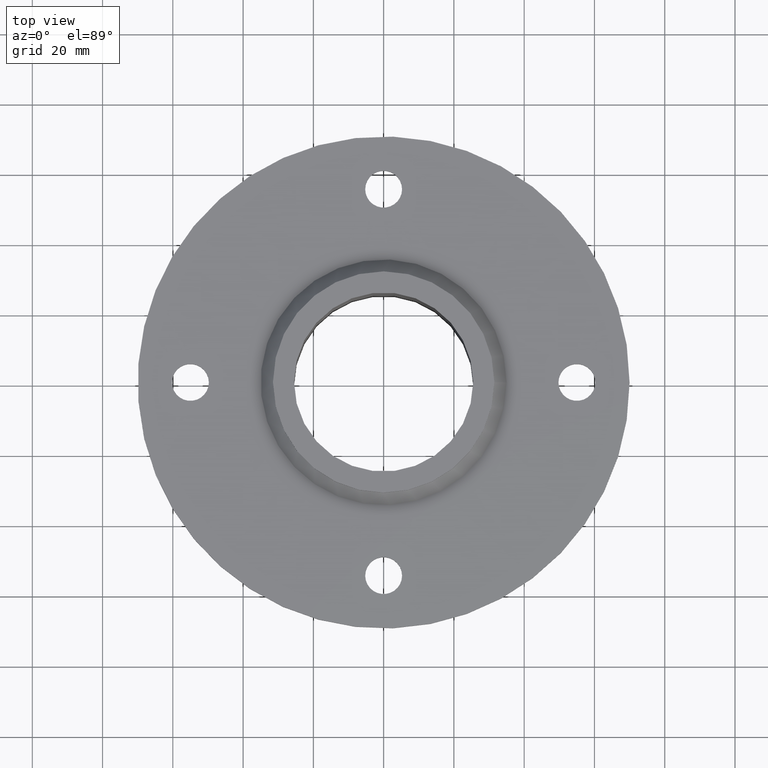
[diagram: clean part render]
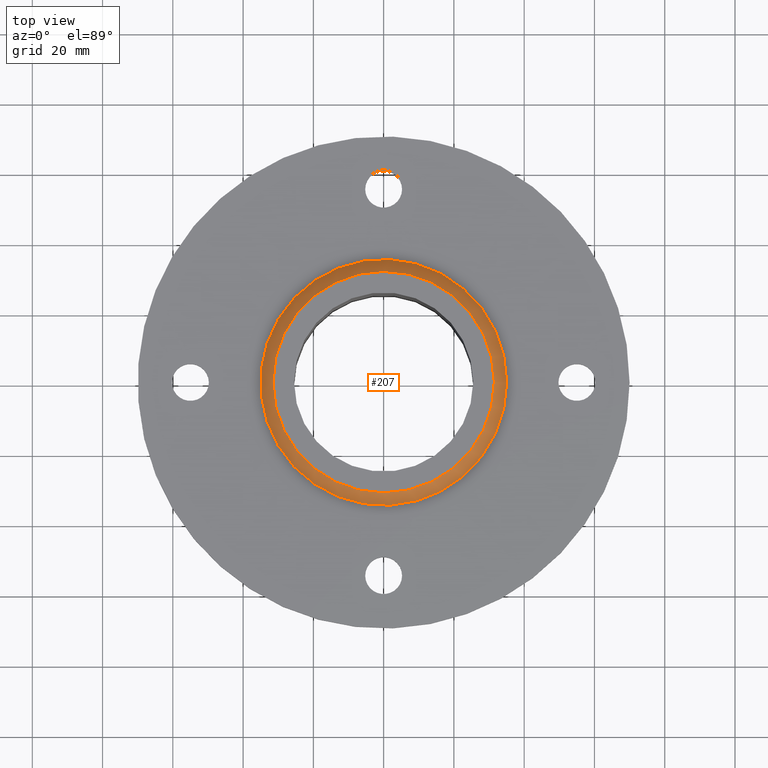
[diagram: same view with one face highlighted and labeled with its STEP entity id]
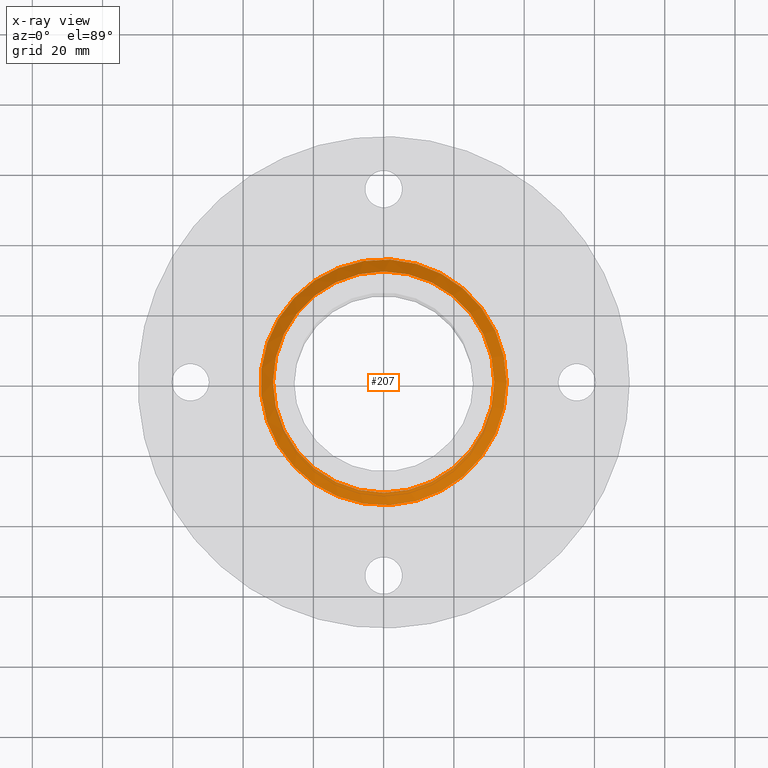
[diagram: x-ray of the same camera — body ghosted, the highlighted face saturated]
A machine part, top view. The second image highlights one B-rep face of the part: STEP entity #207.
The next image is the same camera in x-ray: the body ghosted, the highlighted face saturated — about 0% of this face is hidden behind the body in this view.
In plain terms, the highlighted conical surface has half-angle 45 deg.
Its self-contained STEP definition (entity closure, byte-faithful):
#180=CARTESIAN_POINT('',(0.0,0.0,-4.250000000000002));
#181=DIRECTION('',(0.0,0.0,-1.0));
#182=DIRECTION('',(-1.0,0.0,0.0));
#183=AXIS2_PLACEMENT_3D('',#180,#181,#182);
#184=CONICAL_SURFACE('',#183,33.25,44.999999999999986);
#185=CARTESIAN_POINT('',(35.000000000000014,4.286264E-015,-6.000000000000002));
#186=VERTEX_POINT('',#185);
#187=CARTESIAN_POINT('',(0.0,0.0,-6.000000000000002));
#188=DIRECTION('',(0.0,0.0,1.0));
#189=DIRECTION('',(-1.0,0.0,0.0));
#190=AXIS2_PLACEMENT_3D('',#187,#188,#189);
#191=CIRCLE('',#190,35.000000000000014);
#192=EDGE_CURVE('',#186,#186,#191,.T.);
#193=ORIENTED_EDGE('',*,*,#192,.T.);
#194=EDGE_LOOP('',(#193));
#195=FACE_OUTER_BOUND('',#194,.T.);
#196=CARTESIAN_POINT('',(31.500000000000014,-3.857637E-015,-2.500000000000002));
#197=VERTEX_POINT('',#196);
#198=CARTESIAN_POINT('',(0.0,0.0,-2.500000000000002));
#199=DIRECTION('',(0.0,0.0,-1.0));
#200=DIRECTION('',(-1.0,0.0,0.0));
#201=AXIS2_PLACEMENT_3D('',#198,#199,#200);
#202=CIRCLE('',#201,31.500000000000014);
#203=EDGE_CURVE('',#197,#197,#202,.T.);
#204=ORIENTED_EDGE('',*,*,#203,.T.);
#205=EDGE_LOOP('',(#204));
#206=FACE_BOUND('',#205,.T.);
#207=ADVANCED_FACE('',(#195,#206),#184,.T.);